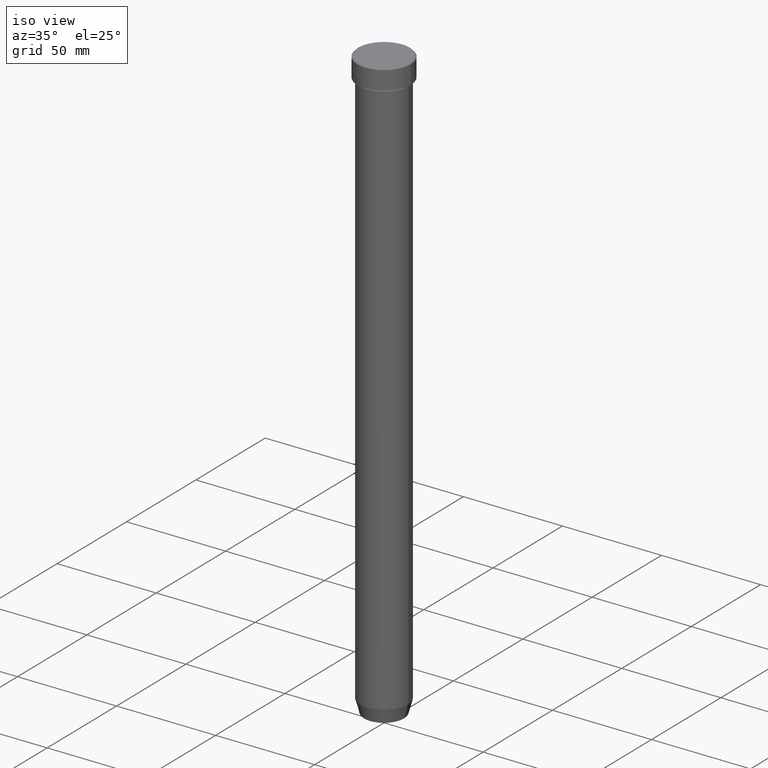
[diagram: clean part render]
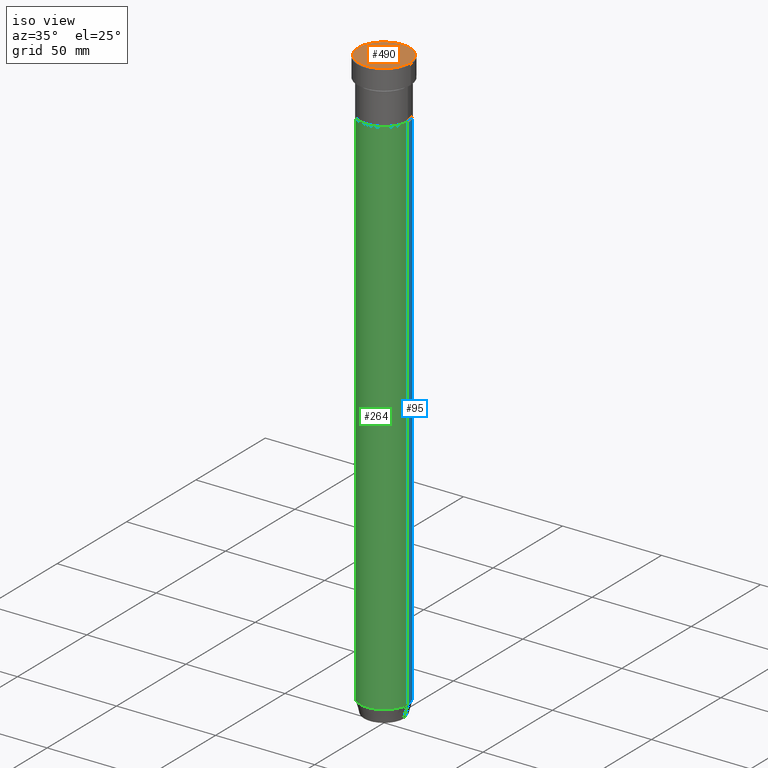
[diagram: same view with three faces highlighted in distinct colors, each labeled with its STEP entity id]
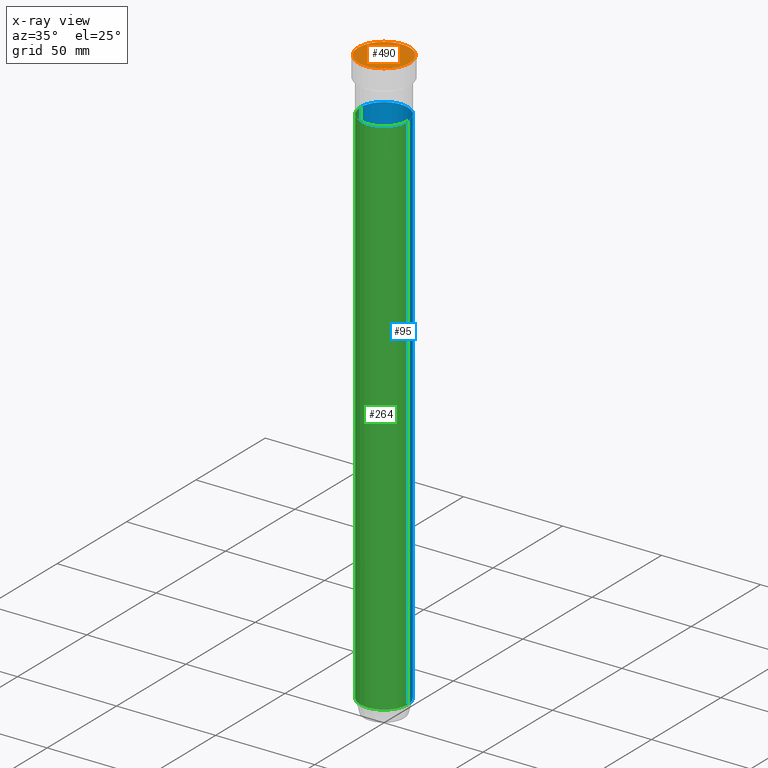
[diagram: x-ray of the same camera — body ghosted, the three highlighted faces saturated]
A machine part, iso view with three faces highlighted in distinct colors.
The next image is the same camera in x-ray (body ghosted, the three faces saturated) — at least one of them is partly hidden behind the body in this view.
Their STEP definitions:

[orange] entity #490 — the highlighted planar face has unit normal (0, -0, 1).
#47 = AXIS2_PLACEMENT_3D ( 'NONE', #147, #292, #327 ) ;
#88 = EDGE_CURVE ( 'NONE', #231, #237, #184, .T. ) ;
#143 = DIRECTION ( 'NONE',  ( 1.000000000000000000, 0.000000000000000000, 0.000000000000000000 ) ) ;
#147 = CARTESIAN_POINT ( 'NONE',  ( 0.000000000000000000, 0.000000000000000000, 0.000000000000000000 ) ) ;
#149 = CARTESIAN_POINT ( 'NONE',  ( 0.000000000000000000, 0.000000000000000000, 0.000000000000000000 ) ) ;
#153 = DIRECTION ( 'NONE',  ( -0.000000000000000000, -0.000000000000000000, 1.000000000000000000 ) ) ;
#154 = EDGE_CURVE ( 'NONE', #237, #231, #277, .T. ) ;
#182 = ORIENTED_EDGE ( 'NONE', *, *, #88, .T. ) ;
#184 = CIRCLE ( 'NONE', #47, 12.99999999999999645 ) ;
#231 = VERTEX_POINT ( 'NONE', #390 ) ;
#232 = FACE_OUTER_BOUND ( 'NONE', #322, .T. ) ;
#237 = VERTEX_POINT ( 'NONE', #261 ) ;
#261 = CARTESIAN_POINT ( 'NONE',  ( -12.99999999999999645, 0.000000000000000000, 0.000000000000000000 ) ) ;
#277 = CIRCLE ( 'NONE', #287, 12.99999999999999645 ) ;
#287 = AXIS2_PLACEMENT_3D ( 'NONE', #511, #153, #481 ) ;
#292 = DIRECTION ( 'NONE',  ( -0.000000000000000000, -0.000000000000000000, 1.000000000000000000 ) ) ;
#322 = EDGE_LOOP ( 'NONE', ( #586, #182 ) ) ;
#327 = DIRECTION ( 'NONE',  ( 1.000000000000000000, 0.000000000000000000, 0.000000000000000000 ) ) ;
#390 = CARTESIAN_POINT ( 'NONE',  ( 12.99999999999999645, 1.622657008870242882E-15, 0.000000000000000000 ) ) ;
#456 = PLANE ( 'NONE',  #530 ) ;
#481 = DIRECTION ( 'NONE',  ( 1.000000000000000000, 0.000000000000000000, 0.000000000000000000 ) ) ;
#490 = ADVANCED_FACE ( 'NONE', ( #232 ), #456, .T. ) ;
#508 = DIRECTION ( 'NONE',  ( 0.000000000000000000, -0.000000000000000000, 1.000000000000000000 ) ) ;
#511 = CARTESIAN_POINT ( 'NONE',  ( 0.000000000000000000, 0.000000000000000000, 0.000000000000000000 ) ) ;
#530 = AXIS2_PLACEMENT_3D ( 'NONE', #149, #508, #143 ) ;
#586 = ORIENTED_EDGE ( 'NONE', *, *, #154, .T. ) ;

[blue] entity #95 — the highlighted cylindrical surface (edge-blend (fillet) strip) has radius 12 mm, axis along (-0, -0, 1).
#6 = AXIS2_PLACEMENT_3D ( 'NONE', #547, #9, #286 ) ;
#9 = DIRECTION ( 'NONE',  ( -0.000000000000000000, -0.000000000000000000, 1.000000000000000000 ) ) ;
#19 = CIRCLE ( 'NONE', #168, 12.00000000000000000 ) ;
#27 = ORIENTED_EDGE ( 'NONE', *, *, #328, .T. ) ;
#40 = ORIENTED_EDGE ( 'NONE', *, *, #559, .F. ) ;
#48 = DIRECTION ( 'NONE',  ( 1.000000000000000000, 0.000000000000000000, 0.000000000000000000 ) ) ;
#52 = EDGE_CURVE ( 'NONE', #543, #469, #585, .T. ) ;
#53 = CARTESIAN_POINT ( 'NONE',  ( 12.00000000000000000, 0.000000000000000000, 0.000000000000000000 ) ) ;
#75 = ORIENTED_EDGE ( 'NONE', *, *, #484, .T. ) ;
#91 = DIRECTION ( 'NONE',  ( 1.000000000000000000, 0.000000000000000000, 0.000000000000000000 ) ) ;
#95 = ADVANCED_FACE ( 'NONE', ( #425 ), #243, .T. ) ;
#100 = VECTOR ( 'NONE', #501, 1000.000000000000000 ) ;
#165 = CARTESIAN_POINT ( 'NONE',  ( -12.00000000000000000, 1.469576158976823947E-15, -293.0000000000000568 ) ) ;
#168 = AXIS2_PLACEMENT_3D ( 'NONE', #193, #326, #48 ) ;
#173 = VERTEX_POINT ( 'NONE', #165 ) ;
#193 = CARTESIAN_POINT ( 'NONE',  ( 0.000000000000000000, 0.000000000000000000, -293.0000000000000568 ) ) ;
#219 = DIRECTION ( 'NONE',  ( -0.000000000000000000, -0.000000000000000000, 1.000000000000000000 ) ) ;
#229 = CARTESIAN_POINT ( 'NONE',  ( 12.00000000000000000, 0.000000000000000000, -27.00000000000000000 ) ) ;
#243 = CYLINDRICAL_SURFACE ( 'NONE', #529, 12.00000000000000000 ) ;
#258 = VECTOR ( 'NONE', #219, 1000.000000000000000 ) ;
#262 = VERTEX_POINT ( 'NONE', #394 ) ;
#286 = DIRECTION ( 'NONE',  ( 1.000000000000000000, 0.000000000000000000, 0.000000000000000000 ) ) ;
#326 = DIRECTION ( 'NONE',  ( -0.000000000000000000, -0.000000000000000000, 1.000000000000000000 ) ) ;
#328 = EDGE_CURVE ( 'NONE', #173, #469, #406, .T. ) ;
#354 = ORIENTED_EDGE ( 'NONE', *, *, #52, .F. ) ;
#359 = EDGE_LOOP ( 'NONE', ( #75, #27, #354, #40 ) ) ;
#377 = CARTESIAN_POINT ( 'NONE',  ( -12.00000000000000000, 1.469576158976823947E-15, -27.00000000000000000 ) ) ;
#378 = DIRECTION ( 'NONE',  ( -0.000000000000000000, -0.000000000000000000, 1.000000000000000000 ) ) ;
#394 = CARTESIAN_POINT ( 'NONE',  ( 12.00000000000000000, 0.000000000000000000, -293.0000000000000568 ) ) ;
#406 = LINE ( 'NONE', #447, #258 ) ;
#425 = FACE_OUTER_BOUND ( 'NONE', #359, .T. ) ;
#447 = CARTESIAN_POINT ( 'NONE',  ( -12.00000000000000000, 1.469576158976823947E-15, 0.000000000000000000 ) ) ;
#469 = VERTEX_POINT ( 'NONE', #377 ) ;
#484 = EDGE_CURVE ( 'NONE', #262, #173, #19, .T. ) ;
#501 = DIRECTION ( 'NONE',  ( -0.000000000000000000, -0.000000000000000000, 1.000000000000000000 ) ) ;
#502 = CARTESIAN_POINT ( 'NONE',  ( 0.000000000000000000, 0.000000000000000000, 0.000000000000000000 ) ) ;
#529 = AXIS2_PLACEMENT_3D ( 'NONE', #502, #378, #91 ) ;
#543 = VERTEX_POINT ( 'NONE', #229 ) ;
#547 = CARTESIAN_POINT ( 'NONE',  ( 0.000000000000000000, 0.000000000000000000, -27.00000000000000000 ) ) ;
#559 = EDGE_CURVE ( 'NONE', #262, #543, #594, .T. ) ;
#585 = CIRCLE ( 'NONE', #6, 12.00000000000000000 ) ;
#594 = LINE ( 'NONE', #53, #100 ) ;

[green] entity #264 — the highlighted cylindrical surface (edge-blend (fillet) strip) has radius 12 mm, axis along (-0, -0, 1).
#26 = CARTESIAN_POINT ( 'NONE',  ( 0.000000000000000000, 0.000000000000000000, -293.0000000000000568 ) ) ;
#53 = CARTESIAN_POINT ( 'NONE',  ( 12.00000000000000000, 0.000000000000000000, 0.000000000000000000 ) ) ;
#68 = DIRECTION ( 'NONE',  ( 1.000000000000000000, 0.000000000000000000, 0.000000000000000000 ) ) ;
#80 = AXIS2_PLACEMENT_3D ( 'NONE', #26, #131, #496 ) ;
#87 = ORIENTED_EDGE ( 'NONE', *, *, #559, .T. ) ;
#89 = CARTESIAN_POINT ( 'NONE',  ( 0.000000000000000000, 0.000000000000000000, -27.00000000000000000 ) ) ;
#100 = VECTOR ( 'NONE', #501, 1000.000000000000000 ) ;
#101 = DIRECTION ( 'NONE',  ( 1.000000000000000000, 0.000000000000000000, 0.000000000000000000 ) ) ;
#131 = DIRECTION ( 'NONE',  ( -0.000000000000000000, -0.000000000000000000, 1.000000000000000000 ) ) ;
#165 = CARTESIAN_POINT ( 'NONE',  ( -12.00000000000000000, 1.469576158976823947E-15, -293.0000000000000568 ) ) ;
#173 = VERTEX_POINT ( 'NONE', #165 ) ;
#188 = CIRCLE ( 'NONE', #80, 12.00000000000000000 ) ;
#219 = DIRECTION ( 'NONE',  ( -0.000000000000000000, -0.000000000000000000, 1.000000000000000000 ) ) ;
#229 = CARTESIAN_POINT ( 'NONE',  ( 12.00000000000000000, 0.000000000000000000, -27.00000000000000000 ) ) ;
#240 = AXIS2_PLACEMENT_3D ( 'NONE', #89, #342, #101 ) ;
#258 = VECTOR ( 'NONE', #219, 1000.000000000000000 ) ;
#262 = VERTEX_POINT ( 'NONE', #394 ) ;
#264 = ADVANCED_FACE ( 'NONE', ( #388 ), #517, .T. ) ;
#288 = CIRCLE ( 'NONE', #240, 12.00000000000000000 ) ;
#305 = AXIS2_PLACEMENT_3D ( 'NONE', #527, #348, #68 ) ;
#313 = ORIENTED_EDGE ( 'NONE', *, *, #328, .F. ) ;
#315 = EDGE_CURVE ( 'NONE', #173, #262, #188, .T. ) ;
#328 = EDGE_CURVE ( 'NONE', #173, #469, #406, .T. ) ;
#342 = DIRECTION ( 'NONE',  ( -0.000000000000000000, -0.000000000000000000, 1.000000000000000000 ) ) ;
#348 = DIRECTION ( 'NONE',  ( -0.000000000000000000, -0.000000000000000000, 1.000000000000000000 ) ) ;
#377 = CARTESIAN_POINT ( 'NONE',  ( -12.00000000000000000, 1.469576158976823947E-15, -27.00000000000000000 ) ) ;
#388 = FACE_OUTER_BOUND ( 'NONE', #537, .T. ) ;
#394 = CARTESIAN_POINT ( 'NONE',  ( 12.00000000000000000, 0.000000000000000000, -293.0000000000000568 ) ) ;
#406 = LINE ( 'NONE', #447, #258 ) ;
#447 = CARTESIAN_POINT ( 'NONE',  ( -12.00000000000000000, 1.469576158976823947E-15, 0.000000000000000000 ) ) ;
#469 = VERTEX_POINT ( 'NONE', #377 ) ;
#496 = DIRECTION ( 'NONE',  ( 1.000000000000000000, 0.000000000000000000, 0.000000000000000000 ) ) ;
#501 = DIRECTION ( 'NONE',  ( -0.000000000000000000, -0.000000000000000000, 1.000000000000000000 ) ) ;
#517 = CYLINDRICAL_SURFACE ( 'NONE', #305, 12.00000000000000000 ) ;
#518 = ORIENTED_EDGE ( 'NONE', *, *, #315, .T. ) ;
#527 = CARTESIAN_POINT ( 'NONE',  ( 0.000000000000000000, 0.000000000000000000, 0.000000000000000000 ) ) ;
#537 = EDGE_LOOP ( 'NONE', ( #313, #518, #87, #582 ) ) ;
#539 = EDGE_CURVE ( 'NONE', #469, #543, #288, .T. ) ;
#543 = VERTEX_POINT ( 'NONE', #229 ) ;
#559 = EDGE_CURVE ( 'NONE', #262, #543, #594, .T. ) ;
#582 = ORIENTED_EDGE ( 'NONE', *, *, #539, .F. ) ;
#594 = LINE ( 'NONE', #53, #100 ) ;